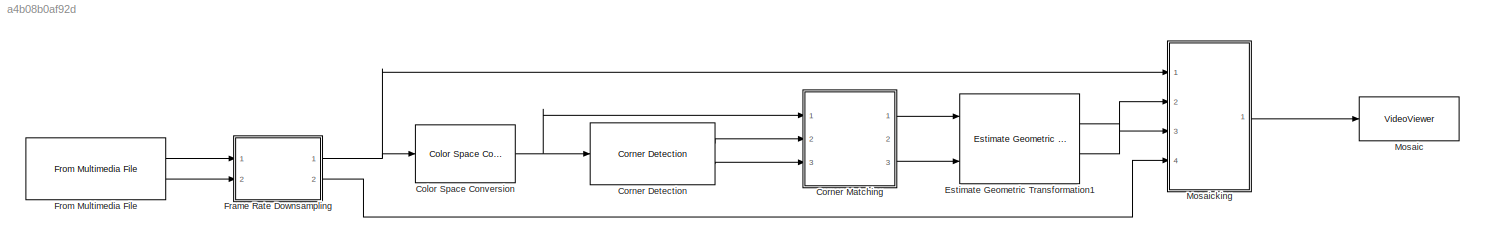
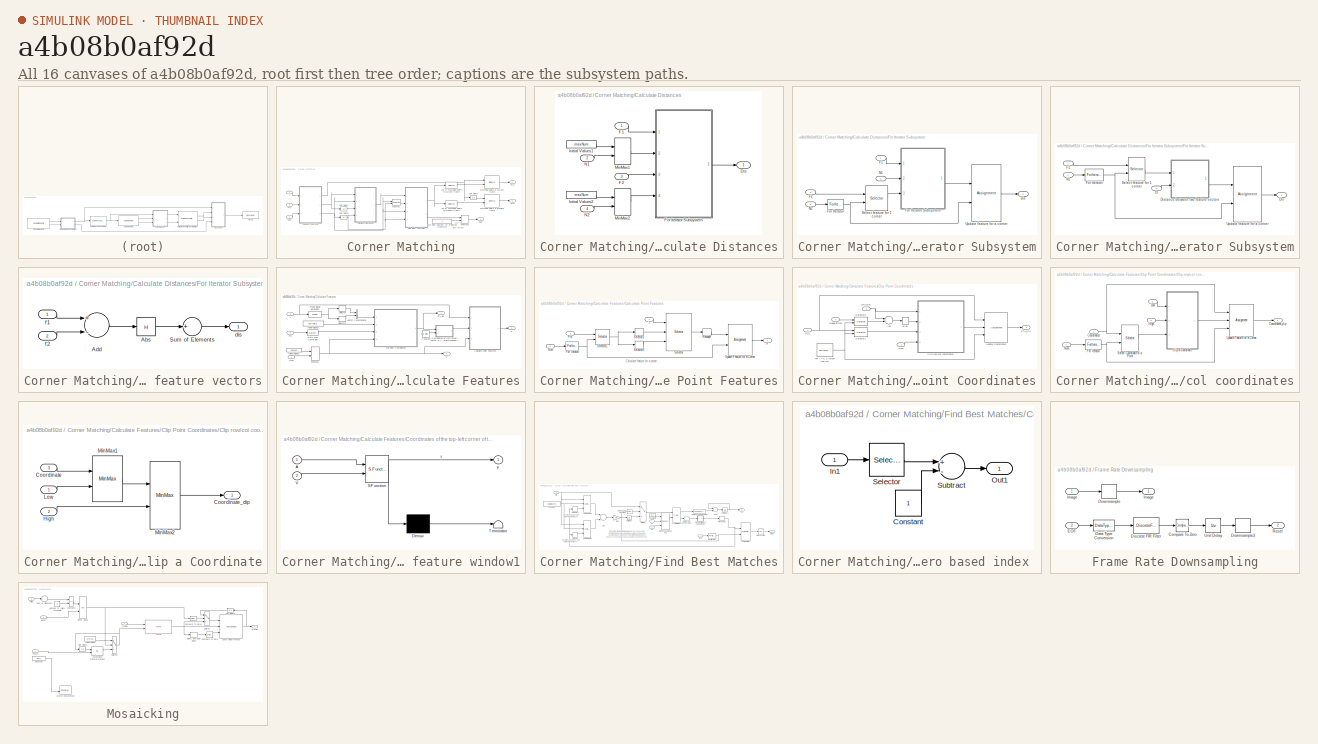
[diagram: thumbnail index - all 16 canvases of the model, root first then tree order]
MODEL slx_a4b08b0af92d
KIND model
CONFIG AbsTol = auto
CONFIG FixedStep = auto
CONFIG MaxStep = auto
CONFIG MinStep = auto
CONFIG RelTol = 1e-3
CONFIG SampleTimeConstraint = Unconstrained
CONFIG Solver = VariableStepAuto
CONFIG SolverMode = Auto
CONFIG SolverName = VariableStepAuto
CONFIG StartTime = 0.0
CONFIG StopTime = 10.0
BLOCK [Reference] Color Space Conversion  REF=visionconversions/Color Space
 Conversion
  Ports = [1, 1]
  SourceBlock = visionconversions/Color Space\n Conversion
  SourceType = Color Space Conversion
BLOCK [Reference] Corner Detection  REF=visionanalysis/Corner Detection
  Ports = [1, 2]
  SourceBlock = visionanalysis/Corner Detection
  SourceType = Corner Detection
BLOCK [SubSystem] Corner Matching
  Ports = [3, 3]
  RequestExecContextInheritance = off
  Variant = off
BLOCK [SubSystem] Corner Matching/Calculate Distances
  AttributesFormatString = between features.
  Ports = [4, 1]
  RequestExecContextInheritance = off
  TreatAsAtomicUnit = on
  Variant = off
BLOCK [Outport] Corner Matching/Calculate Distances/Dis
  IconDisplay = Port number
BLOCK [Inport] Corner Matching/Calculate Distances/F1
  IconDisplay = Port number
BLOCK [Inport] Corner Matching/Calculate Distances/F2
  IconDisplay = Port number
  Port = 3
BLOCK [SubSystem] Corner Matching/Calculate Distances/For Iterator Subsystem
  Ports = [4, 1]
  RequestExecContextInheritance = off
  TreatAsAtomicUnit = on
  Variant = off
BLOCK [Outport] Corner Matching/Calculate Distances/For Iterator Subsystem/Dis
  IconDisplay = Port number
BLOCK [Inport] Corner Matching/Calculate Distances/For Iterator Subsystem/F1
  IconDisplay = Port number
BLOCK [Inport] Corner Matching/Calculate Distances/For Iterator Subsystem/F2
  IconDisplay = Port number
  Port = 3
BLOCK [ForIterator] Corner Matching/Calculate Distances/For Iterator Subsystem/For Iterator
  IndexMode = Zero-based
  IterationSource = external
  Ports = [1, 1]
BLOCK [SubSystem] Corner Matching/Calculate Distances/For Iterator Subsystem/For Iterator Subsystem
  Ports = [3, 1]
  RequestExecContextInheritance = off
  TreatAsAtomicUnit = on
  Variant = off
BLOCK [Outport] Corner Matching/Calculate Distances/For Iterator Subsystem/For Iterator Subsystem/Dis
  IconDisplay = Port number
BLOCK [SubSystem] Corner Matching/Calculate Distances/For Iterator Subsystem/For Iterator Subsystem/Distance between two feature vectors
  Ports = [2, 1]
  RequestExecContextInheritance = off
  Variant = off
BLOCK [Abs] Corner Matching/Calculate Distances/For Iterator Subsystem/For Iterator Subsystem/Distance between two feature vectors/Abs
  SaturateOnIntegerOverflow = off
BLOCK [Sum] Corner Matching/Calculate Distances/For Iterator Subsystem/For Iterator Subsystem/Distance between two feature vectors/Add
  InputSameDT = off
  Inputs = +-
  OutDataTypeStr = Inherit: Inherit via internal rule
  Ports = [2, 1]
  SaturateOnIntegerOverflow = off
BLOCK [Sum] Corner Matching/Calculate Distances/For Iterator Subsystem/For Iterator Subsystem/Distance between two feature vectors/Sum of Elements
  InputSameDT = off
  Inputs = +
  OutDataTypeStr = Inherit: Inherit via internal rule
  Ports = [1, 1]
  SaturateOnIntegerOverflow = off
BLOCK [Outport] Corner Matching/Calculate Distances/For Iterator Subsystem/For Iterator Subsystem/Distance between two feature vectors/dis
  IconDisplay = Port number
BLOCK [Inport] Corner Matching/Calculate Distances/For Iterator Subsystem/For Iterator Subsystem/Distance between two feature vectors/f1
  IconDisplay = Port number
BLOCK [Inport] Corner Matching/Calculate Distances/For Iterator Subsystem/For Iterator Subsystem/Distance between two feature vectors/f2
  IconDisplay = Port number
  Port = 2
BLOCK [Inport] Corner Matching/Calculate Distances/For Iterator Subsystem/For Iterator Subsystem/F1
  IconDisplay = Port number
BLOCK [ForIterator] Corner Matching/Calculate Distances/For Iterator Subsystem/For Iterator Subsystem/For Iterator
  IndexMode = Zero-based
  IterationSource = external
  Ports = [1, 1]
BLOCK [Inport] Corner Matching/Calculate Distances/For Iterator Subsystem/For Iterator Subsystem/N1
  IconDisplay = Port number
  Port = 2
BLOCK [Selector] Corner Matching/Calculate Distances/For Iterator Subsystem/For Iterator Subsystem/Select feature for 1 corner
  IndexMode = Zero-based
  IndexOptions = Index vector (port),Select all
  Indices = 0,1
  InputPortWidth = 2
  NumberOfDimensions = 2
  OutputSizes = 1,1
  Ports = [2, 1]
BLOCK [Assignment] Corner Matching/Calculate Distances/For Iterator Subsystem/For Iterator Subsystem/Update feature for a corner
  IndexMode = Zero-based
  IndexOptions = Index vector (port),Assign all
  Indices = 1,1
  NumberOfDimensions = 2
  OutputInitialize = Specify size for each dimension in table
  OutputSizes = maxNum,1
  Ports = [2, 1]
BLOCK [Inport] Corner Matching/Calculate Distances/For Iterator Subsystem/For Iterator Subsystem/f2
  IconDisplay = Port number
  Port = 3
BLOCK [Inport] Corner Matching/Calculate Distances/For Iterator Subsystem/N1
  IconDisplay = Port number
  Port = 2
BLOCK [Inport] Corner Matching/Calculate Distances/For Iterator Subsystem/N2
  IconDisplay = Port number
  Port = 4
BLOCK [Selector] Corner Matching/Calculate Distances/For Iterator Subsystem/Select feature for 1 corner
  IndexMode = Zero-based
  IndexOptions = Index vector (port),Select all
  Indices = 0,1
  InputPortWidth = 2
  NumberOfDimensions = 2
  OutputSizes = 1,1
  Ports = [2, 1]
BLOCK [Assignment] Corner Matching/Calculate Distances/For Iterator Subsystem/Update feature for a corner
  IndexMode = Zero-based
  IndexOptions = Assign all,Index vector (port)
  Indices = 1,1
  NumberOfDimensions = 2
  OutputInitialize = Specify size for each dimension in table
  OutputSizes = maxNum,maxNum
  Ports = [2, 1]
BLOCK [Constant] Corner Matching/Calculate Distances/Initial Values1
  OutDataTypeStr = Inherit: Inherit via back propagation
  SampleTime = -1
  Value = maxNum
BLOCK [Constant] Corner Matching/Calculate Distances/Initial Values2
  OutDataTypeStr = Inherit: Inherit via back propagation
  SampleTime = -1
  Value = maxNum
BLOCK [MinMax] Corner Matching/Calculate Distances/MinMax1
  InputSameDT = off
  Inputs = 2
  Ports = [2, 1]
  SaturateOnIntegerOverflow = off
BLOCK [MinMax] Corner Matching/Calculate Distances/MinMax2
  InputSameDT = off
  Inputs = 2
  Ports = [2, 1]
  SaturateOnIntegerOverflow = off
BLOCK [Inport] Corner Matching/Calculate Distances/N1
  IconDisplay = Port number
  Port = 2
BLOCK [Inport] Corner Matching/Calculate Distances/N2
  IconDisplay = Port number
  Port = 4
BLOCK [SubSystem] Corner Matching/Calculate Features
  Ports = [3, 3]
  RequestExecContextInheritance = off
  TreatAsAtomicUnit = on
  Variant = off
BLOCK [SubSystem] Corner Matching/Calculate Features/Calculate Point Features
  Ports = [3, 1]
  RequestExecContextInheritance = off
  Variant = off
BLOCK [Outport] Corner Matching/Calculate Features/Calculate Point Features/F
  IconDisplay = Port number
BLOCK [ForIterator] Corner Matching/Calculate Features/Calculate Point Features/For Iterator
  IndexMode = Zero-based
  IterationSource = external
  Ports = [1, 1]
BLOCK [Inport] Corner Matching/Calculate Features/Calculate Point Features/I
  IconDisplay = Port number
BLOCK [Inport] Corner Matching/Calculate Features/Calculate Point Features/Num
  IconDisplay = Port number
  Port = 3
BLOCK [Inport] Corner Matching/Calculate Features/Calculate Point Features/Pts
  IconDisplay = Port number
  Port = 2
BLOCK [Reshape] Corner Matching/Calculate Features/Calculate Point Features/Reshape
  OutputDimensionality = Row vector (2-D)
  Ports = [1, 1]
BLOCK [Selector] Corner Matching/Calculate Features/Calculate Point Features/Selector
  IndexMode = Zero-based
  IndexOptions = Starting index (port),Starting index (port)
  Indices = [1 3],1
  InputPortWidth = 3
  NumberOfDimensions = 2
  OutputSizes = winLen,winLen
  Ports = [3, 1]
BLOCK [Selector] Corner Matching/Calculate Features/Calculate Point Features/Selector1
  IndexMode = Zero-based
  IndexOptions = Index vector (port),Select all
  Indices = [1 3],1
  InputPortWidth = 3
  NumberOfDimensions = 2
  OutputSizes = 9,9
  Ports = [2, 1]
BLOCK [Selector] Corner Matching/Calculate Features/Calculate Point Features/Selector2
  IndexMode = Zero-based
  IndexOptions = Index vector (dialog)
  Indices = 1
  InputPortWidth = 2
  OutputSizes = 9
  Ports = [1, 1]
BLOCK [Selector] Corner Matching/Calculate Features/Calculate Point Features/Selector3
  IndexMode = Zero-based
  IndexOptions = Index vector (dialog)
  Indices = 0
  InputPortWidth = 2
  OutputSizes = 9
  Ports = [1, 1]
BLOCK [Assignment] Corner Matching/Calculate Features/Calculate Point Features/Update Feature for a Corner
  IndexMode = Zero-based
  IndexOptions = Index vector (port),Assign all
  Indices = 1,1
  NumberOfDimensions = 2
  OutputInitialize = Specify size for each dimension in table
  OutputSizes = maxNum,winLen^2
  Ports = [2, 1]
BLOCK [SubSystem] Corner Matching/Calculate Features/Clip Point Coordinates
  Ports = [4, 1]
  RequestExecContextInheritance = off
  Variant = off
BLOCK [Sum] Corner Matching/Calculate Features/Clip Point Coordinates/Add
  InputSameDT = off
  Inputs = -+
  OutDataTypeStr = Inherit: Inherit via internal rule
  Ports = [2, 1]
  SaturateOnIntegerOverflow = off
BLOCK [Bias] Corner Matching/Calculate Features/Clip Point Coordinates/Bias
  Bias = -1
  SaturateOnIntegerOverflow = off
BLOCK [SubSystem] Corner Matching/Calculate Features/Clip Point Coordinates/Clip row//col coordinates
  Ports = [4, 1]
  RequestExecContextInheritance = off
  Variant = off
BLOCK [SubSystem] Corner Matching/Calculate Features/Clip Point Coordinates/Clip row//col coordinates/Clip a Coordinate
  Ports = [3, 1]
  RequestExecContextInheritance = off
  Variant = off
BLOCK [Inport] Corner Matching/Calculate Features/Clip Point Coordinates/Clip row//col coordinates/Clip a Coordinate/Coordinate
  IconDisplay = Port number
  Port = 3
BLOCK [Outport] Corner Matching/Calculate Features/Clip Point Coordinates/Clip row//col coordinates/Clip a Coordinate/Coordinate_clip
  IconDisplay = Port number
BLOCK [Inport] Corner Matching/Calculate Features/Clip Point Coordinates/Clip row//col coordinates/Clip a Coordinate/High
  IconDisplay = Port number
  Port = 2
BLOCK [Inport] Corner Matching/Calculate Features/Clip Point Coordinates/Clip row//col coordinates/Clip a Coordinate/Low
  IconDisplay = Port number
BLOCK [MinMax] Corner Matching/Calculate Features/Clip Point Coordinates/Clip row//col coordinates/Clip a Coordinate/MinMax1
  Function = max
  InputSameDT = off
  Inputs = 2
  Ports = [2, 1]
  SaturateOnIntegerOverflow = off
BLOCK [MinMax] Corner Matching/Calculate Features/Clip Point Coordinates/Clip row//col coordinates/Clip a Coordinate/MinMax2
  InputSameDT = off
  Inputs = 2
  Ports = [2, 1]
  SaturateOnIntegerOverflow = off
BLOCK [Inport] Corner Matching/Calculate Features/Clip Point Coordinates/Clip row//col coordinates/Coordinates
  IconDisplay = Port number
  Port = 3
BLOCK [Outport] Corner Matching/Calculate Features/Clip Point Coordinates/Clip row//col coordinates/Coordinates_clip
  IconDisplay = Port number
BLOCK [ForIterator] Corner Matching/Calculate Features/Clip Point Coordinates/Clip row//col coordinates/For Iterator
  IndexMode = Zero-based
  IterationLimit = 2
  IterationSource = external
  Ports = [1, 1]
BLOCK [Inport] Corner Matching/Calculate Features/Clip Point Coordinates/Clip row//col coordinates/High
  IconDisplay = Port number
  Port = 2
BLOCK [Inport] Corner Matching/Calculate Features/Clip Point Coordinates/Clip row//col coordinates/Low
  IconDisplay = Port number
BLOCK [Inport] Corner Matching/Calculate Features/Clip Point Coordinates/Clip row//col coordinates/Num
  IconDisplay = Port number
  Port = 4
BLOCK [Selector] Corner Matching/Calculate Features/Clip Point Coordinates/Clip row//col coordinates/Select Coordinate of a Point
  IndexMode = Zero-based
  IndexOptions = Index vector (port),Select all
  Indices = [1 3],1
  InputPortWidth = 3
  NumberOfDimensions = 2
  OutputSizes = 9,1
  Ports = [2, 1]
BLOCK [Assignment] Corner Matching/Calculate Features/Clip Point Coordinates/Clip row//col coordinates/Update Feature for a Corner
  IndexMode = Zero-based
  IndexOptions = Index vector (port),Assign all
  Indices = 1,1
  NumberOfDimensions = 2
  OutputSizes = 81,50
  Ports = [3, 1]
BLOCK [ForIterator] Corner Matching/Calculate Features/Clip Point Coordinates/For i = 0: 1 (select row//col)
  IndexMode = Zero-based
  IterationLimit = 2
  Ports = [0, 1]
BLOCK [Inport] Corner Matching/Calculate Features/Clip Point Coordinates/Image_dimen
  IconDisplay = Port number
BLOCK [Inport] Corner Matching/Calculate Features/Clip Point Coordinates/Num
  IconDisplay = Port number
  Port = 4
BLOCK [Inport] Corner Matching/Calculate Features/Clip Point Coordinates/Pts
  IconDisplay = Port number
  Port = 3
BLOCK [Outport] Corner Matching/Calculate Features/Clip Point Coordinates/Pts_clip
  IconDisplay = Port number
BLOCK [Selector] Corner Matching/Calculate Features/Clip Point Coordinates/Selector1
  IndexMode = Zero-based
  IndexOptions = Select all,Index vector (port)
  Indices = [1 3],1
  InputPortWidth = 3
  NumberOfDimensions = 2
  OutputSizes = 9,9
  Ports = [2, 1]
BLOCK [Selector] Corner Matching/Calculate Features/Clip Point Coordinates/Selector2
  IndexMode = Zero-based
  IndexOptions = Index vector (port)
  Indices = [1 3]
  InputPortWidth = 2
  OutputSizes = 9
  Ports = [2, 1]
BLOCK [Assignment] Corner Matching/Calculate Features/Clip Point Coordinates/Update Coordinates
  IndexMode = Zero-based
  IndexOptions = Assign all,Index vector (port)
  Indices = 1,1
  NumberOfDimensions = 2
  OutputSizes = 81,50
  Ports = [3, 1]
BLOCK [Inport] Corner Matching/Calculate Features/Clip Point Coordinates/Win_size
  IconDisplay = Port number
  Port = 2
BLOCK [Constant] Corner Matching/Calculate Features/Constant
  OutDataTypeStr = int32
  Value = floor([winLen; winLen] / 2)
BLOCK [SubSystem] Corner Matching/Calculate Features/Coordinates of the top-left corner of the feature window1
  ErrorFcn = Stateflow.Translate.translate
  PermitHierarchicalResolution = ExplicitOnly
  Ports = [2, 1]
  RequestExecContextInheritance = off
  SFBlockType = MATLAB Function
  TreatAsAtomicUnit = on
  Variant = off
BLOCK [Demux] Corner Matching/Calculate Features/Coordinates of the top-left corner of the feature window1/ Demux 
  Outputs = 1
  Ports = [1, 1]
BLOCK [S-Function] Corner Matching/Calculate Features/Coordinates of the top-left corner of the feature window1/ SFunction 
  EnableBusSupport = on
  FunctionName = sf_sfun
  PortCounts = [2 2]
  Ports = [2, 2]
  SFunctionDeploymentMode = off
  Tag = Stateflow S-Function temp 2
BLOCK [Terminator] Corner Matching/Calculate Features/Coordinates of the top-left corner of the feature window1/ Terminator 
BLOCK [Inport] Corner Matching/Calculate Features/Coordinates of the top-left corner of the feature window1/A
  IconDisplay = Port number
BLOCK [Inport] Corner Matching/Calculate Features/Coordinates of the top-left corner of the feature window1/V
  IconDisplay = Port number
  Port = 2
BLOCK [Outport] Corner Matching/Calculate Features/Coordinates of the top-left corner of the feature window1/y
  IconDisplay = Port number
BLOCK [DataTypeConversion] Corner Matching/Calculate Features/Data Type Conversion
  OutDataTypeStr = int32
  RndMeth = Floor
  SaturateOnIntegerOverflow = off
BLOCK [Outport] Corner Matching/Calculate Features/F
  IconDisplay = Port number
  Port = 2
BLOCK [Inport] Corner Matching/Calculate Features/I
  IconDisplay = Port number
BLOCK [Constant] Corner Matching/Calculate Features/Initial Values1
  OutDataTypeStr = Inherit: Inherit via back propagation
  SampleTime = -1
  Value = maxNum
BLOCK [Constant] Corner Matching/Calculate Features/Initial Values2
  OutDataTypeStr = Inherit: Inherit via back propagation
  SampleTime = -1
  Value = floor(winLen/2)
BLOCK [MinMax] Corner Matching/Calculate Features/MinMax1
  InputSameDT = off
  Inputs = 2
  Ports = [2, 1]
  SaturateOnIntegerOverflow = off
BLOCK [Outport] Corner Matching/Calculate Features/N
  IconDisplay = Port number
  Port = 3
BLOCK [Inport] Corner Matching/Calculate Features/Num
  IconDisplay = Port number
  Port = 3
BLOCK [Probe] Corner Matching/Calculate Features/Probe signal dimension
  Ports = [1, 1]
  ProbeComplexSignal = off
  ProbeDimensionsDataType = int32
  ProbeSampleTime = off
  ProbeSignalDimensions = on
  ProbeWidth = off
BLOCK [Inport] Corner Matching/Calculate Features/Pts
  IconDisplay = Port number
  Port = 2
BLOCK [Outport] Corner Matching/Calculate Features/Pts_clip
  IconDisplay = Port number
BLOCK [Selector] Corner Matching/Calculate Features/Selector
  IndexOptions = Index vector (dialog)
  Indices = 2
  InputPortWidth = 2
  OutputSizes = 1
  Ports = [1, 1]
BLOCK [Selector] Corner Matching/Calculate Features/Selector1
  IndexOptions = Index vector (dialog)
  Indices = 1
  InputPortWidth = 2
  OutputSizes = 1
  Ports = [1, 1]
BLOCK [Concatenate] Corner Matching/Calculate Features/Vector Concatenate
  Ports = [2, 1]
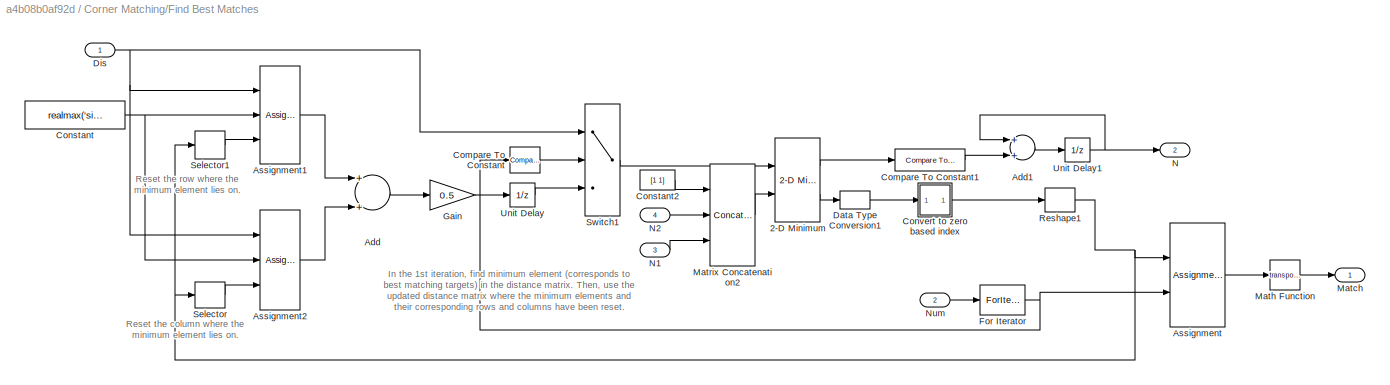
BLOCK [SubSystem] Corner Matching/Find Best Matches
  AttributesFormatString = between the features\nin the current and previous frames
  Ports = [4, 2]
  RequestExecContextInheritance = off
  TreatAsAtomicUnit = on
  Variant = off
BLOCK [Reference] Corner Matching/Find Best Matches/2-D Minimum  REF=visionstatistics/2-D Minimum
  Ports = [2, 2]
  SourceBlock = visionstatistics/2-D Minimum
  SourceType = 2-D Minimum
  UserDataPersistent = on
BLOCK [Sum] Corner Matching/Find Best Matches/Add
  InputSameDT = off
  OutDataTypeStr = Inherit: Inherit via internal rule
  Ports = [2, 1]
  SaturateOnIntegerOverflow = off
BLOCK [Sum] Corner Matching/Find Best Matches/Add1
  InputSameDT = off
  OutDataTypeStr = int32
  Ports = [2, 1]
  SaturateOnIntegerOverflow = off
BLOCK [Assignment] Corner Matching/Find Best Matches/Assignment
  IndexMode = Zero-based
  IndexOptions = Assign all,Index vector (port)
  Indices = -1,-1
  NumberOfDimensions = 2
  OutputInitialize = Specify size for each dimension in table
  OutputSizes = 2,maxNum
  Ports = [2, 1]
BLOCK [Assignment] Corner Matching/Find Best Matches/Assignment1
  IndexMode = Zero-based
  IndexOptions = Index vector (port),Assign all
  Indices = 1,-1
  NumberOfDimensions = 2
  OutputSizes = 1,1
  Ports = [3, 1]
BLOCK [Assignment] Corner Matching/Find Best Matches/Assignment2
  IndexMode = Zero-based
  IndexOptions = Assign all,Index vector (port)
  Indices = -1,-1
  NumberOfDimensions = 2
  OutputSizes = 1,1
  Ports = [3, 1]
BLOCK [Reference] Corner Matching/Find Best Matches/Compare To Constant  REF=simulink/Logic and Bit
Operations/Compare
To Constant
  Ports = [1, 1]
  SourceBlock = simulink/Logic and Bit\nOperations/Compare\nTo Constant
  SourceType = Compare To Constant
BLOCK [Reference] Corner Matching/Find Best Matches/Compare To Constant1  REF=simulink/Logic and Bit
Operations/Compare
To Constant
  Ports = [1, 1]
  SourceBlock = simulink/Logic and Bit\nOperations/Compare\nTo Constant
  SourceType = Compare To Constant
BLOCK [Constant] Corner Matching/Find Best Matches/Constant
  OutDataTypeStr = Inherit: Inherit via back propagation
  Value = realmax('single')
  VectorParams1D = off
BLOCK [Constant] Corner Matching/Find Best Matches/Constant2
  OutDataTypeStr = Inherit: Inherit via back propagation
  Value = [1 1]
  VectorParams1D = off
BLOCK [SubSystem] Corner Matching/Find Best Matches/Convert to zero based index 
  Ports = [1, 1]
  RequestExecContextInheritance = off
  Variant = off
BLOCK [Constant] Corner Matching/Find Best Matches/Convert to zero based index /Constant
BLOCK [Inport] Corner Matching/Find Best Matches/Convert to zero based index /In1
  IconDisplay = Port number
BLOCK [Outport] Corner Matching/Find Best Matches/Convert to zero based index /Out1
  IconDisplay = Port number
BLOCK [Selector] Corner Matching/Find Best Matches/Convert to zero based index /Selector
  IndexOptions = Select all,Index vector (dialog)
  Indices = [1 3],[2 1]
  InputPortWidth = 3
  NumberOfDimensions = 2
  OutputSizes = 1,1
  Ports = [1, 1]
BLOCK [Sum] Corner Matching/Find Best Matches/Convert to zero based index /Subtract
  InputSameDT = off
  Inputs = +-
  OutDataTypeStr = Inherit: Inherit via internal rule
  Ports = [2, 1]
  SaturateOnIntegerOverflow = off
BLOCK [DataTypeConversion] Corner Matching/Find Best Matches/Data Type Conversion1
  OutDataTypeStr = int32
BLOCK [Inport] Corner Matching/Find Best Matches/Dis
  IconDisplay = Port number
BLOCK [ForIterator] Corner Matching/Find Best Matches/For Iterator
  IndexMode = Zero-based
  IterationLimit = expLaneNum
  IterationSource = external
  Ports = [1, 1]
  ResetStates = reset
BLOCK [Gain] Corner Matching/Find Best Matches/Gain
  Gain = 0.5
  OutDataTypeStr = Inherit: Inherit via internal rule
  ParamDataTypeStr = Inherit: Inherit via internal rule
  SaturateOnIntegerOverflow = off
BLOCK [Outport] Corner Matching/Find Best Matches/Match
  IconDisplay = Port number
BLOCK [Math] Corner Matching/Find Best Matches/Math Function
  Operator = transpose
  Ports = [1, 1]
BLOCK [Concatenate] Corner Matching/Find Best Matches/Matrix Concatenation2
  ConcatenateDimension = 2
  Mode = Multidimensional array
  NumInputs = 3
  Ports = [3, 1]
BLOCK [Outport] Corner Matching/Find Best Matches/N
  IconDisplay = Port number
  Port = 2
BLOCK [Inport] Corner Matching/Find Best Matches/N1
  IconDisplay = Port number
  Port = 3
BLOCK [Inport] Corner Matching/Find Best Matches/N2
  IconDisplay = Port number
  Port = 4
BLOCK [Inport] Corner Matching/Find Best Matches/Num
  IconDisplay = Port number
  Port = 2
BLOCK [Reshape] Corner Matching/Find Best Matches/Reshape1
  OutputDimensionality = Column vector (2-D)
  Ports = [1, 1]
BLOCK [Selector] Corner Matching/Find Best Matches/Selector
  IndexMode = Zero-based
  IndexOptions = Index vector (dialog)
  Indices = 1
  InputPortWidth = 2
  OutputSizes = 1
  Ports = [1, 1]
BLOCK [Selector] Corner Matching/Find Best Matches/Selector1
  IndexMode = Zero-based
  IndexOptions = Index vector (dialog)
  Indices = 0
  InputPortWidth = 2
  OutputSizes = 1
  Ports = [1, 1]
BLOCK [Switch] Corner Matching/Find Best Matches/Switch1
  Criteria = u2 ~= 0
  InputSameDT = off
  SaturateOnIntegerOverflow = off
BLOCK [UnitDelay] Corner Matching/Find Best Matches/Unit Delay
  InputProcessing = Elements as channels (sample based)
  SampleTime = -1
BLOCK [UnitDelay] Corner Matching/Find Best Matches/Unit Delay1
  InputProcessing = Elements as channels (sample based)
  SampleTime = -1
BLOCK [Inport] Corner Matching/I
  IconDisplay = Port number
BLOCK [Selector] Corner Matching/Idx of matching points in current frame
  IndexMode = Zero-based
  IndexOptions = Select all,Index vector (dialog)
  Indices = 0,0
  InputPortWidth = 2
  NumberOfDimensions = 2
  OutputSizes = 1,1
  Ports = [1, 1]
BLOCK [Selector] Corner Matching/Idx of matching points in previous frame
  IndexMode = Zero-based
  IndexOptions = Select all,Index vector (dialog)
  Indices = 1,1
  InputPortWidth = 2
  NumberOfDimensions = 2
  OutputSizes = 1,1
  Ports = [1, 1]
BLOCK [Selector] Corner Matching/Matching points in current frame
  IndexMode = Zero-based
  IndexOptions = Index vector (port),Select all
  Indices = 0,1
  InputPortWidth = 2
  NumberOfDimensions = 2
  OutputSizes = 1,1
  Ports = [2, 1]
BLOCK [Selector] Corner Matching/Matching points in previous frame
  IndexMode = Zero-based
  IndexOptions = Index vector (port),Select all
  Indices = 0,1
  InputPortWidth = 2
  NumberOfDimensions = 2
  OutputSizes = 1,1
  Ports = [2, 1]
BLOCK [Constant] Corner Matching/Min Point Number for Projective Transform
  OutDataTypeStr = Inherit: Inherit via back propagation
  Value = 4
BLOCK [MinMax] Corner Matching/MinMax1
  InputSameDT = off
  Inputs = 2
  Ports = [2, 1]
  SaturateOnIntegerOverflow = off
BLOCK [MinMax] Corner Matching/MinMax2
  Function = max
  InputSameDT = off
  Inputs = 2
  OutDataTypeStr = Inherit: Inherit via back propagation
  Ports = [2, 1]
  SaturateOnIntegerOverflow = off
BLOCK [Inport] Corner Matching/Num
  IconDisplay = Port number
  Port = 3
BLOCK [Outport] Corner Matching/Num 
  IconDisplay = Port number
  Port = 3
BLOCK [Inport] Corner Matching/Pts
  IconDisplay = Port number
  Port = 2
BLOCK [Outport] Corner Matching/Pts1
  IconDisplay = Port number
BLOCK [Outport] Corner Matching/Pts2
  IconDisplay = Port number
  Port = 2
BLOCK [UnitDelay] Corner Matching/Unit Delay4
  SampleTime = -1
BLOCK [UnitDelay] Corner Matching/Unit Delay6
  SampleTime = -1
BLOCK [UnitDelay] Corner Matching/Unit Delay7
  SampleTime = -1
BLOCK [Reference] Estimate Geometric Transformation1  REF=visiongeotforms/Estimate Geometric
Transformation
  Ports = [3, 2]
  SourceBlock = visiongeotforms/Estimate Geometric\nTransformation
  SourceType = Estimate Geometric Transformation
BLOCK [SubSystem] Frame Rate Downsampling
  Ports = [2, 2]
  RequestExecContextInheritance = off
  Variant = off
BLOCK [Reference] Frame Rate Downsampling/Compare To Zero  REF=simulink/Logic and Bit
Operations/Compare
To Zero
  Ports = [1, 1]
  SourceBlock = simulink/Logic and Bit\nOperations/Compare\nTo Zero
  SourceType = Compare To Zero
BLOCK [DataTypeConversion] Frame Rate Downsampling/Data Type Conversion
  OutDataTypeStr = single
  RndMeth = Floor
  SaturateOnIntegerOverflow = off
BLOCK [DiscreteFir] Frame Rate Downsampling/Discrete FIR Filter
  Coefficients = ones(1, frameRate)
  InputPortMap = u0
  OutputPortMap = o0
  Ports = [1, 1]
BLOCK [DownSample] Frame Rate Downsampling/Downsample
  InputProcessing = Elements as channels (sample based)
  N = frameRate
  RateOptions = Allow multirate processing
  UserDataPersistent = on
BLOCK [DownSample] Frame Rate Downsampling/Downsample3
  InputProcessing = Elements as channels (sample based)
  N = frameRate
  RateOptions = Allow multirate processing
  UserDataPersistent = on
BLOCK [Inport] Frame Rate Downsampling/EOF
  IconDisplay = Port number
  Port = 2
BLOCK [Inport] Frame Rate Downsampling/Image
  IconDisplay = Port number
BLOCK [Outport] Frame Rate Downsampling/Image 
  IconDisplay = Port number
BLOCK [Outport] Frame Rate Downsampling/Reset
  IconDisplay = Port number
  Port = 2
BLOCK [UnitDelay] Frame Rate Downsampling/Unit Delay
  InitialCondition = 1
  SampleTime = -1
BLOCK [Reference] From Multimedia File  REF=dspvision/From Multimedia File
  Ports = [0, 2]
  SourceBlock = dspvision/From Multimedia File
  SourceType = From Multimedia File
BLOCK [VideoViewer] Mosaic 
  FigPos = [1 1038 1920 938]
  Ports = [1]
  ScopeSpecificationString = vipscopes.VideoViewerScopeCfg('CurrentConfiguration', extmgr.ConfigurationSet(extmgr.Configuration('Core','General UI',true,'FigureProperties',[],'FigureColor',[0.701960784313725 0.701960784313725 0.701960784313725]),extmgr.Configuration('Core','Source UI',true),extmgr.Configuration('Sources','WiredSimulink',true),extmgr.Configuration('Sources','Simulink',false),extmgr.Configuration('Sources','Wor...<+1047ch>
  colormapValue = gray(256)
  trueSizedOnce = on
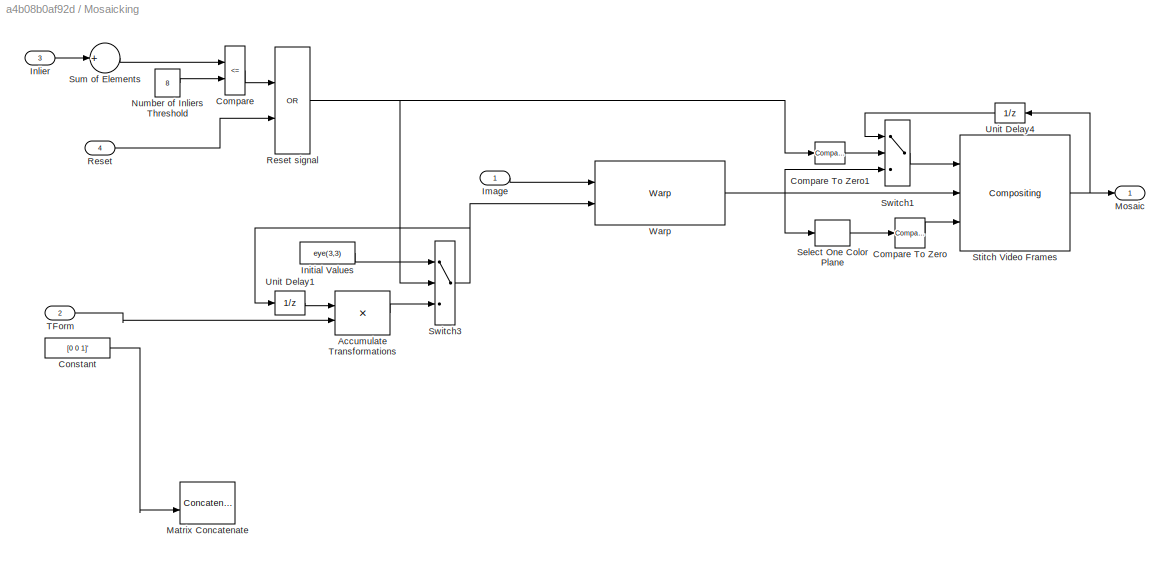
BLOCK [SubSystem] Mosaicking
  Ports = [4, 1]
  RequestExecContextInheritance = off
  Variant = off
BLOCK [Product] Mosaicking/Accumulate Transformations
  InputSameDT = off
  Multiplication = Matrix(*)
  OutDataTypeStr = Inherit: Inherit via internal rule
  Ports = [2, 1]
  SaturateOnIntegerOverflow = off
BLOCK [RelationalOperator] Mosaicking/Compare
  Operator = <=
  OutDataTypeStr = boolean
  Ports = [2, 1]
  ZeroCross = off
BLOCK [Reference] Mosaicking/Compare To Zero  REF=simulink/Logic and Bit
Operations/Compare
To Zero
  Ports = [1, 1]
  SourceBlock = simulink/Logic and Bit\nOperations/Compare\nTo Zero
  SourceType = Compare To Zero
BLOCK [Reference] Mosaicking/Compare To Zero1  REF=simulink/Logic and Bit
Operations/Compare
To Zero
  Ports = [1, 1]
  SourceBlock = simulink/Logic and Bit\nOperations/Compare\nTo Zero
  SourceType = Compare To Zero
BLOCK [Constant] Mosaicking/Constant
  OutDataTypeStr = Inherit: Inherit via back propagation
  Value = [0 0 1]'
  VectorParams1D = off
BLOCK [Inport] Mosaicking/Image
  IconDisplay = Port number
BLOCK [Constant] Mosaicking/Initial Values
  OutDataTypeStr = Inherit: Inherit via back propagation
  SampleTime = -1
  Value = eye(3,3)
BLOCK [Inport] Mosaicking/Inlier
  IconDisplay = Port number
  Port = 3
BLOCK [Concatenate] Mosaicking/Matrix Concatenate
  ConcatenateDimension = 2
  Mode = Multidimensional array
  Ports = [2, 1]
BLOCK [Outport] Mosaicking/Mosaic
  IconDisplay = Port number
BLOCK [Constant] Mosaicking/Number of Inliers Threshold
  OutDataTypeStr = Inherit: Inherit via back propagation
  SampleTime = -1
  Value = 8
BLOCK [Inport] Mosaicking/Reset
  IconDisplay = Port number
  Port = 4
BLOCK [Logic] Mosaicking/Reset signal
  AllPortsSameDT = off
  AttributesFormatString = Restart mosaicking when the video started\nor when no enough inliers were found.
  Operator = OR
  OutDataTypeStr = boolean
  Ports = [2, 1]
BLOCK [Selector] Mosaicking/Select One Color Plane
  IndexOptions = Select all,Select all,Index vector (dialog)
  Indices = 40,10,1
  InputPortWidth = 3
  NumberOfDimensions = 3
  OutputSizes = 240,320,1
  Ports = [1, 1]
BLOCK [Reference] Mosaicking/Stitch Video Frames  REF=visiontextngfix/Compositing
  Ports = [3, 1]
  SourceBlock = visiontextngfix/Compositing
  SourceType = Compositing
BLOCK [Sum] Mosaicking/Sum of Elements
  InputSameDT = off
  Inputs = +
  OutDataTypeStr = Inherit: Inherit via internal rule
  Ports = [1, 1]
  SaturateOnIntegerOverflow = off
BLOCK [Switch] Mosaicking/Switch1
  Criteria = u2 ~= 0
  SaturateOnIntegerOverflow = off
  ZeroCross = off
BLOCK [Switch] Mosaicking/Switch3
  Criteria = u2 ~= 0
  SaturateOnIntegerOverflow = off
  ZeroCross = off
BLOCK [Inport] Mosaicking/TForm
  IconDisplay = Port number
  Port = 2
BLOCK [UnitDelay] Mosaicking/Unit Delay1
  SampleTime = -1
BLOCK [UnitDelay] Mosaicking/Unit Delay4
  SampleTime = -1
BLOCK [Reference] Mosaicking/Warp  REF=visiongeotforms/Warp
  Ports = [2, 1]
  SourceBlock = visiongeotforms/Warp
  SourceType = vision.internal.blocks.Warp
ANNOTATION Corner Matching: Just to silent warning
ANNOTATION Corner Matching/Calculate Features/Calculate Point Features: Calculate feature for a corner.
ANNOTATION Corner Matching/Find Best Matches: In the 1st iteration, find minimum element (corresponds to best matching targets) in the distance matrix. Then, use the updated distance matrix where the minimum elements and their corresponding rows and columns have been reset.
ANNOTATION Corner Matching/Find Best Matches: Reset the column where the minimum element lies on.
ANNOTATION Corner Matching/Find Best Matches: Reset the row where the minimum element lies on.
NET Color Space Conversion:1 -> Corner Detection:1, Corner Matching:1
LINE Corner Detection:1 -> Corner Matching:2
LINE Corner Detection:2 -> Corner Matching:3
LINE Corner Matching/Calculate Distances/F1:1 -> Corner Matching/Calculate Distances/For Iterator Subsystem:1
LINE Corner Matching/Calculate Distances/F2:1 -> Corner Matching/Calculate Distances/For Iterator Subsystem:3
LINE Corner Matching/Calculate Distances/For Iterator Subsystem/F1:1 -> Corner Matching/Calculate Distances/For Iterator Subsystem/For Iterator Subsystem:1
LINE Corner Matching/Calculate Distances/For Iterator Subsystem/F2:1 -> Corner Matching/Calculate Distances/For Iterator Subsystem/Select feature for 1 corner:1
LINE Corner Matching/Calculate Distances/For Iterator Subsystem/For Iterator Subsystem/Distance between two feature vectors/Abs:1 -> Corner Matching/Calculate Distances/For Iterator Subsystem/For Iterator Subsystem/Distance between two feature vectors/Sum of Elements:1
LINE Corner Matching/Calculate Distances/For Iterator Subsystem/For Iterator Subsystem/Distance between two feature vectors/Add:1 -> Corner Matching/Calculate Distances/For Iterator Subsystem/For Iterator Subsystem/Distance between two feature vectors/Abs:1
LINE Corner Matching/Calculate Distances/For Iterator Subsystem/For Iterator Subsystem/Distance between two feature vectors/Sum of Elements:1 -> Corner Matching/Calculate Distances/For Iterator Subsystem/For Iterator Subsystem/Distance between two feature vectors/dis:1
LINE Corner Matching/Calculate Distances/For Iterator Subsystem/For Iterator Subsystem/Distance between two feature vectors/f1:1 -> Corner Matching/Calculate Distances/For Iterator Subsystem/For Iterator Subsystem/Distance between two feature vectors/Add:1
LINE Corner Matching/Calculate Distances/For Iterator Subsystem/For Iterator Subsystem/Distance between two feature vectors/f2:1 -> Corner Matching/Calculate Distances/For Iterator Subsystem/For Iterator Subsystem/Distance between two feature vectors/Add:2
LINE Corner Matching/Calculate Distances/For Iterator Subsystem/For Iterator Subsystem/Distance between two feature vectors:1 -> Corner Matching/Calculate Distances/For Iterator Subsystem/For Iterator Subsystem/Update feature for a corner:1
LINE Corner Matching/Calculate Distances/For Iterator Subsystem/For Iterator Subsystem/F1:1 -> Corner Matching/Calculate Distances/For Iterator Subsystem/For Iterator Subsystem/Select feature for 1 corner:1
NET Corner Matching/Calculate Distances/For Iterator Subsystem/For Iterator Subsystem/For Iterator:1 -> Corner Matching/Calculate Distances/For Iterator Subsystem/For Iterator Subsystem/Select feature for 1 corner:2, Corner Matching/Calculate Distances/For Iterator Subsystem/For Iterator Subsystem/Update feature for a corner:2
LINE Corner Matching/Calculate Distances/For Iterator Subsystem/For Iterator Subsystem/N1:1 -> Corner Matching/Calculate Distances/For Iterator Subsystem/For Iterator Subsystem/For Iterator:1
LINE Corner Matching/Calculate Distances/For Iterator Subsystem/For Iterator Subsystem/Select feature for 1 corner:1 -> Corner Matching/Calculate Distances/For Iterator Subsystem/For Iterator Subsystem/Distance between two feature vectors:1
LINE Corner Matching/Calculate Distances/For Iterator Subsystem/For Iterator Subsystem/Update feature for a corner:1 -> Corner Matching/Calculate Distances/For Iterator Subsystem/For Iterator Subsystem/Dis:1
LINE Corner Matching/Calculate Distances/For Iterator Subsystem/For Iterator Subsystem/f2:1 -> Corner Matching/Calculate Distances/For Iterator Subsystem/For Iterator Subsystem/Distance between two feature vectors:2
LINE Corner Matching/Calculate Distances/For Iterator Subsystem/For Iterator Subsystem:1 -> Corner Matching/Calculate Distances/For Iterator Subsystem/Update feature for a corner:1
NET Corner Matching/Calculate Distances/For Iterator Subsystem/For Iterator:1 -> Corner Matching/Calculate Distances/For Iterator Subsystem/Select feature for 1 corner:2, Corner Matching/Calculate Distances/For Iterator Subsystem/Update feature for a corner:2
LINE Corner Matching/Calculate Distances/For Iterator Subsystem/N1:1 -> Corner Matching/Calculate Distances/For Iterator Subsystem/For Iterator Subsystem:2
LINE Corner Matching/Calculate Distances/For Iterator Subsystem/N2:1 -> Corner Matching/Calculate Distances/For Iterator Subsystem/For Iterator:1
LINE Corner Matching/Calculate Distances/For Iterator Subsystem/Select feature for 1 corner:1 -> Corner Matching/Calculate Distances/For Iterator Subsystem/For Iterator Subsystem:3
LINE Corner Matching/Calculate Distances/For Iterator Subsystem/Update feature for a corner:1 -> Corner Matching/Calculate Distances/For Iterator Subsystem/Dis:1
LINE Corner Matching/Calculate Distances/For Iterator Subsystem:1 -> Corner Matching/Calculate Distances/Dis:1
LINE Corner Matching/Calculate Distances/Initial Values1:1 -> Corner Matching/Calculate Distances/MinMax1:1
LINE Corner Matching/Calculate Distances/Initial Values2:1 -> Corner Matching/Calculate Distances/MinMax2:1
LINE Corner Matching/Calculate Distances/MinMax1:1 -> Corner Matching/Calculate Distances/For Iterator Subsystem:2
LINE Corner Matching/Calculate Distances/MinMax2:1 -> Corner Matching/Calculate Distances/For Iterator Subsystem:4
LINE Corner Matching/Calculate Distances/N1:1 -> Corner Matching/Calculate Distances/MinMax1:2
LINE Corner Matching/Calculate Distances/N2:1 -> Corner Matching/Calculate Distances/MinMax2:2
LINE Corner Matching/Calculate Distances:1 -> Corner Matching/Find Best Matches:1
NET Corner Matching/Calculate Features/Calculate Point Features/For Iterator:1 -> Corner Matching/Calculate Features/Calculate Point Features/Selector1:2, Corner Matching/Calculate Features/Calculate Point Features/Update Feature for a Corner:2
LINE Corner Matching/Calculate Features/Calculate Point Features/I:1 -> Corner Matching/Calculate Features/Calculate Point Features/Selector:1
LINE Corner Matching/Calculate Features/Calculate Point Features/Num:1 -> Corner Matching/Calculate Features/Calculate Point Features/For Iterator:1
LINE Corner Matching/Calculate Features/Calculate Point Features/Pts:1 -> Corner Matching/Calculate Features/Calculate Point Features/Selector1:1
LINE Corner Matching/Calculate Features/Calculate Point Features/Reshape:1 -> Corner Matching/Calculate Features/Calculate Point Features/Update Feature for a Corner:1
NET Corner Matching/Calculate Features/Calculate Point Features/Selector1:1 -> Corner Matching/Calculate Features/Calculate Point Features/Selector2:1, Corner Matching/Calculate Features/Calculate Point Features/Selector3:1
LINE Corner Matching/Calculate Features/Calculate Point Features/Selector2:1 -> Corner Matching/Calculate Features/Calculate Point Features/Selector:2
LINE Corner Matching/Calculate Features/Calculate Point Features/Selector3:1 -> Corner Matching/Calculate Features/Calculate Point Features/Selector:3
LINE Corner Matching/Calculate Features/Calculate Point Features/Selector:1 -> Corner Matching/Calculate Features/Calculate Point Features/Reshape:1
LINE Corner Matching/Calculate Features/Calculate Point Features/Update Feature for a Corner:1 -> Corner Matching/Calculate Features/Calculate Point Features/F:1
LINE Corner Matching/Calculate Features/Calculate Point Features:1 -> Corner Matching/Calculate Features/F:1
LINE Corner Matching/Calculate Features/Clip Point Coordinates/Add:1 -> Corner Matching/Calculate Features/Clip Point Coordinates/Bias:1
LINE Corner Matching/Calculate Features/Clip Point Coordinates/Bias:1 -> Corner Matching/Calculate Features/Clip Point Coordinates/Clip row//col coordinates:2
LINE Corner Matching/Calculate Features/Clip Point Coordinates/Clip row//col coordinates/Clip a Coordinate/Coordinate:1 -> Corner Matching/Calculate Features/Clip Point Coordinates/Clip row//col coordinates/Clip a Coordinate/MinMax1:1
LINE Corner Matching/Calculate Features/Clip Point Coordinates/Clip row//col coordinates/Clip a Coordinate/High:1 -> Corner Matching/Calculate Features/Clip Point Coordinates/Clip row//col coordinates/Clip a Coordinate/MinMax2:2
LINE Corner Matching/Calculate Features/Clip Point Coordinates/Clip row//col coordinates/Clip a Coordinate/Low:1 -> Corner Matching/Calculate Features/Clip Point Coordinates/Clip row//col coordinates/Clip a Coordinate/MinMax1:2
LINE Corner Matching/Calculate Features/Clip Point Coordinates/Clip row//col coordinates/Clip a Coordinate/MinMax1:1 -> Corner Matching/Calculate Features/Clip Point Coordinates/Clip row//col coordinates/Clip a Coordinate/MinMax2:1
LINE Corner Matching/Calculate Features/Clip Point Coordinates/Clip row//col coordinates/Clip a Coordinate/MinMax2:1 -> Corner Matching/Calculate Features/Clip Point Coordinates/Clip row//col coordinates/Clip a Coordinate/Coordinate_clip:1
LINE Corner Matching/Calculate Features/Clip Point Coordinates/Clip row//col coordinates/Clip a Coordinate:1 -> Corner Matching/Calculate Features/Clip Point Coordinates/Clip row//col coordinates/Update Feature for a Corner:2
NET Corner Matching/Calculate Features/Clip Point Coordinates/Clip row//col coordinates/Coordinates:1 -> Corner Matching/Calculate Features/Clip Point Coordinates/Clip row//col coordinates/Select Coordinate of a Point:1, Corner Matching/Calculate Features/Clip Point Coordinates/Clip row//col coordinates/Update Feature for a Corner:1
NET Corner Matching/Calculate Features/Clip Point Coordinates/Clip row//col coordinates/For Iterator:1 -> Corner Matching/Calculate Features/Clip Point Coordinates/Clip row//col coordinates/Select Coordinate of a Point:2, Corner Matching/Calculate Features/Clip Point Coordinates/Clip row//col coordinates/Update Feature for a Corner:3
LINE Corner Matching/Calculate Features/Clip Point Coordinates/Clip row//col coordinates/High:1 -> Corner Matching/Calculate Features/Clip Point Coordinates/Clip row//col coordinates/Clip a Coordinate:2
LINE Corner Matching/Calculate Features/Clip Point Coordinates/Clip row//col coordinates/Low:1 -> Corner Matching/Calculate Features/Clip Point Coordinates/Clip row//col coordinates/Clip a Coordinate:1
LINE Corner Matching/Calculate Features/Clip Point Coordinates/Clip row//col coordinates/Num:1 -> Corner Matching/Calculate Features/Clip Point Coordinates/Clip row//col coordinates/For Iterator:1
LINE Corner Matching/Calculate Features/Clip Point Coordinates/Clip row//col coordinates/Select Coordinate of a Point:1 -> Corner Matching/Calculate Features/Clip Point Coordinates/Clip row//col coordinates/Clip a Coordinate:3
LINE Corner Matching/Calculate Features/Clip Point Coordinates/Clip row//col coordinates/Update Feature for a Corner:1 -> Corner Matching/Calculate Features/Clip Point Coordinates/Clip row//col coordinates/Coordinates_clip:1
LINE Corner Matching/Calculate Features/Clip Point Coordinates/Clip row//col coordinates:1 -> Corner Matching/Calculate Features/Clip Point Coordinates/Update Coordinates:2
NET Corner Matching/Calculate Features/Clip Point Coordinates/For i = 0: 1 (select row//col):1 -> Corner Matching/Calculate Features/Clip Point Coordinates/Selector1:2, Corner Matching/Calculate Features/Clip Point Coordinates/Selector2:2, Corner Matching/Calculate Features/Clip Point Coordinates/Update Coordinates:3
LINE Corner Matching/Calculate Features/Clip Point Coordinates/Image_dimen:1 -> Corner Matching/Calculate Features/Clip Point Coordinates/Selector2:1
LINE Corner Matching/Calculate Features/Clip Point Coordinates/Num:1 -> Corner Matching/Calculate Features/Clip Point Coordinates/Clip row//col coordinates:4
NET Corner Matching/Calculate Features/Clip Point Coordinates/Pts:1 -> Corner Matching/Calculate Features/Clip Point Coordinates/Selector1:1, Corner Matching/Calculate Features/Clip Point Coordinates/Update Coordinates:1
LINE Corner Matching/Calculate Features/Clip Point Coordinates/Selector1:1 -> Corner Matching/Calculate Features/Clip Point Coordinates/Clip row//col coordinates:3
LINE Corner Matching/Calculate Features/Clip Point Coordinates/Selector2:1 -> Corner Matching/Calculate Features/Clip Point Coordinates/Add:2
LINE Corner Matching/Calculate Features/Clip Point Coordinates/Update Coordinates:1 -> Corner Matching/Calculate Features/Clip Point Coordinates/Pts_clip:1
NET Corner Matching/Calculate Features/Clip Point Coordinates/Win_size:1 -> Corner Matching/Calculate Features/Clip Point Coordinates/Add:1, Corner Matching/Calculate Features/Clip Point Coordinates/Clip row//col coordinates:1
NET Corner Matching/Calculate Features/Clip Point Coordinates:1 -> Corner Matching/Calculate Features/Coordinates of the top-left corner of the feature window1:1, Corner Matching/Calculate Features/Pts_clip:1
LINE Corner Matching/Calculate Features/Constant:1 -> Corner Matching/Calculate Features/Coordinates of the top-left corner of the feature window1:2
LINE Corner Matching/Calculate Features/Coordinates of the top-left corner of the feature window1:1 -> Corner Matching/Calculate Features/Calculate Point Features:2
LINE Corner Matching/Calculate Features/Data Type Conversion:1 -> Corner Matching/Calculate Features/Clip Point Coordinates:3
NET Corner Matching/Calculate Features/I:1 -> Corner Matching/Calculate Features/Calculate Point Features:1, Corner Matching/Calculate Features/Probe signal dimension:1
LINE Corner Matching/Calculate Features/Initial Values1:1 -> Corner Matching/Calculate Features/MinMax1:1
LINE Corner Matching/Calculate Features/Initial Values2:1 -> Corner Matching/Calculate Features/Clip Point Coordinates:2
NET Corner Matching/Calculate Features/MinMax1:1 -> Corner Matching/Calculate Features/Calculate Point Features:3, Corner Matching/Calculate Features/Clip Point Coordinates:4, Corner Matching/Calculate Features/N:1
LINE Corner Matching/Calculate Features/Num:1 -> Corner Matching/Calculate Features/MinMax1:2
NET Corner Matching/Calculate Features/Probe signal dimension:1 -> Corner Matching/Calculate Features/Selector1:1, Corner Matching/Calculate Features/Selector:1
LINE Corner Matching/Calculate Features/Pts:1 -> Corner Matching/Calculate Features/Data Type Conversion:1
LINE Corner Matching/Calculate Features/Selector1:1 -> Corner Matching/Calculate Features/Vector Concatenate:2
LINE Corner Matching/Calculate Features/Selector:1 -> Corner Matching/Calculate Features/Vector Concatenate:1
LINE Corner Matching/Calculate Features/Vector Concatenate:1 -> Corner Matching/Calculate Features/Clip Point Coordinates:1
NET Corner Matching/Calculate Features:1 -> Corner Matching/Matching points in current frame:1, Corner Matching/Unit Delay7:1
NET Corner Matching/Calculate Features:2 -> Corner Matching/Calculate Distances:1, Corner Matching/Unit Delay4:1
NET Corner Matching/Calculate Features:3 -> Corner Matching/Calculate Distances:2, Corner Matching/Find Best Matches:3, Corner Matching/MinMax1:1, Corner Matching/Unit Delay6:1
LINE Corner Matching/Find Best Matches/2-D Minimum:1 -> Corner Matching/Find Best Matches/Compare To Constant1:1
LINE Corner Matching/Find Best Matches/2-D Minimum:2 -> Corner Matching/Find Best Matches/Data Type Conversion1:1
LINE Corner Matching/Find Best Matches/Add1:1 -> Corner Matching/Find Best Matches/Unit Delay1:1
LINE Corner Matching/Find Best Matches/Add:1 -> Corner Matching/Find Best Matches/Gain:1
LINE Corner Matching/Find Best Matches/Assignment1:1 -> Corner Matching/Find Best Matches/Add:1
LINE Corner Matching/Find Best Matches/Assignment2:1 -> Corner Matching/Find Best Matches/Add:2
LINE Corner Matching/Find Best Matches/Assignment:1 -> Corner Matching/Find Best Matches/Math Function:1
LINE Corner Matching/Find Best Matches/Compare To Constant1:1 -> Corner Matching/Find Best Matches/Add1:2
LINE Corner Matching/Find Best Matches/Compare To Constant:1 -> Corner Matching/Find Best Matches/Switch1:2
LINE Corner Matching/Find Best Matches/Constant2:1 -> Corner Matching/Find Best Matches/Matrix Concatenation2:1
NET Corner Matching/Find Best Matches/Constant:1 -> Corner Matching/Find Best Matches/Assignment1:2, Corner Matching/Find Best Matches/Assignment2:2
LINE Corner Matching/Find Best Matches/Convert to zero based index /Constant:1 -> Corner Matching/Find Best Matches/Convert to zero based index /Subtract:2
LINE Corner Matching/Find Best Matches/Convert to zero based index /In1:1 -> Corner Matching/Find Best Matches/Convert to zero based index /Selector:1
LINE Corner Matching/Find Best Matches/Convert to zero based index /Selector:1 -> Corner Matching/Find Best Matches/Convert to zero based index /Subtract:1
LINE Corner Matching/Find Best Matches/Convert to zero based index /Subtract:1 -> Corner Matching/Find Best Matches/Convert to zero based index /Out1:1
LINE Corner Matching/Find Best Matches/Convert to zero based index :1 -> Corner Matching/Find Best Matches/Reshape1:1
LINE Corner Matching/Find Best Matches/Data Type Conversion1:1 -> Corner Matching/Find Best Matches/Convert to zero based index :1
NET Corner Matching/Find Best Matches/Dis:1 -> Corner Matching/Find Best Matches/Assignment1:1, Corner Matching/Find Best Matches/Assignment2:1, Corner Matching/Find Best Matches/Switch1:1
NET Corner Matching/Find Best Matches/For Iterator:1 -> Corner Matching/Find Best Matches/Assignment:2, Corner Matching/Find Best Matches/Compare To Constant:1
LINE Corner Matching/Find Best Matches/Gain:1 -> Corner Matching/Find Best Matches/Unit Delay:1
LINE Corner Matching/Find Best Matches/Math Function:1 -> Corner Matching/Find Best Matches/Match:1
LINE Corner Matching/Find Best Matches/Matrix Concatenation2:1 -> Corner Matching/Find Best Matches/2-D Minimum:2
LINE Corner Matching/Find Best Matches/N1:1 -> Corner Matching/Find Best Matches/Matrix Concatenation2:3
LINE Corner Matching/Find Best Matches/N2:1 -> Corner Matching/Find Best Matches/Matrix Concatenation2:2
LINE Corner Matching/Find Best Matches/Num:1 -> Corner Matching/Find Best Matches/For Iterator:1
NET Corner Matching/Find Best Matches/Reshape1:1 -> Corner Matching/Find Best Matches/Assignment:1, Corner Matching/Find Best Matches/Selector1:1, Corner Matching/Find Best Matches/Selector:1
LINE Corner Matching/Find Best Matches/Selector1:1 -> Corner Matching/Find Best Matches/Assignment1:3
LINE Corner Matching/Find Best Matches/Selector:1 -> Corner Matching/Find Best Matches/Assignment2:3
LINE Corner Matching/Find Best Matches/Switch1:1 -> Corner Matching/Find Best Matches/2-D Minimum:1
NET Corner Matching/Find Best Matches/Unit Delay1:1 -> Corner Matching/Find Best Matches/Add1:1, Corner Matching/Find Best Matches/N:1
LINE Corner Matching/Find Best Matches/Unit Delay:1 -> Corner Matching/Find Best Matches/Switch1:3
NET Corner Matching/Find Best Matches:1 -> Corner Matching/Idx of matching points in current frame:1, Corner Matching/Idx of matching points in previous frame:1
LINE Corner Matching/Find Best Matches:2 -> Corner Matching/MinMax2:1
LINE Corner Matching/I:1 -> Corner Matching/Calculate Features:1
LINE Corner Matching/Idx of matching points in current frame:1 -> Corner Matching/Matching points in current frame:2
LINE Corner Matching/Idx of matching points in previous frame:1 -> Corner Matching/Matching points in previous frame:2
LINE Corner Matching/Matching points in current frame:1 -> Corner Matching/Pts1:1
LINE Corner Matching/Matching points in previous frame:1 -> Corner Matching/Pts2:1
LINE Corner Matching/Min Point Number for Projective Transform:1 -> Corner Matching/MinMax2:2
LINE Corner Matching/MinMax1:1 -> Corner Matching/Find Best Matches:2
LINE Corner Matching/MinMax2:1 -> Corner Matching/Num :1
LINE Corner Matching/Num:1 -> Corner Matching/Calculate Features:3
LINE Corner Matching/Pts:1 -> Corner Matching/Calculate Features:2
LINE Corner Matching/Unit Delay4:1 -> Corner Matching/Calculate Distances:3
NET Corner Matching/Unit Delay6:1 -> Corner Matching/Calculate Distances:4, Corner Matching/Find Best Matches:4, Corner Matching/MinMax1:2
LINE Corner Matching/Unit Delay7:1 -> Corner Matching/Matching points in previous frame:1
LINE Corner Matching:1 -> Estimate Geometric Transformation1:1
LINE Corner Matching:3 -> Estimate Geometric Transformation1:3
LINE Estimate Geometric Transformation1:1 -> Mosaicking:2
LINE Estimate Geometric Transformation1:2 -> Mosaicking:3
LINE Frame Rate Downsampling/Compare To Zero:1 -> Frame Rate Downsampling/Unit Delay:1
LINE Frame Rate Downsampling/Data Type Conversion:1 -> Frame Rate Downsampling/Discrete FIR Filter:1
LINE Frame Rate Downsampling/Discrete FIR Filter:1 -> Frame Rate Downsampling/Compare To Zero:1
LINE Frame Rate Downsampling/Downsample3:1 -> Frame Rate Downsampling/Reset:1
LINE Frame Rate Downsampling/Downsample:1 -> Frame Rate Downsampling/Image :1
LINE Frame Rate Downsampling/EOF:1 -> Frame Rate Downsampling/Data Type Conversion:1
LINE Frame Rate Downsampling/Image:1 -> Frame Rate Downsampling/Downsample:1
LINE Frame Rate Downsampling/Unit Delay:1 -> Frame Rate Downsampling/Downsample3:1
NET Frame Rate Downsampling:1 -> Color Space Conversion:1, Mosaicking:1
LINE Frame Rate Downsampling:2 -> Mosaicking:4
LINE From Multimedia File:1 -> Frame Rate Downsampling:1
LINE From Multimedia File:2 -> Frame Rate Downsampling:2
LINE Mosaicking/Accumulate Transformations:1 -> Mosaicking/Switch3:3
LINE Mosaicking/Compare To Zero1:1 -> Mosaicking/Switch1:2
LINE Mosaicking/Compare To Zero:1 -> Mosaicking/Stitch Video Frames:3
LINE Mosaicking/Compare:1 -> Mosaicking/Reset signal:1
LINE Mosaicking/Constant:1 -> Mosaicking/Matrix Concatenate:2
LINE Mosaicking/Image:1 -> Mosaicking/Warp:1
LINE Mosaicking/Initial Values:1 -> Mosaicking/Switch3:1
LINE Mosaicking/Inlier:1 -> Mosaicking/Sum of Elements:1
LINE Mosaicking/Number of Inliers Threshold:1 -> Mosaicking/Compare:2
NET Mosaicking/Reset signal:1 -> Mosaicking/Compare To Zero1:1, Mosaicking/Switch3:2
LINE Mosaicking/Reset:1 -> Mosaicking/Reset signal:2
LINE Mosaicking/Select One Color Plane:1 -> Mosaicking/Compare To Zero:1
NET Mosaicking/Stitch Video Frames:1 -> Mosaicking/Mosaic:1, Mosaicking/Unit Delay4:1
LINE Mosaicking/Sum of Elements:1 -> Mosaicking/Compare:1
LINE Mosaicking/Switch1:1 -> Mosaicking/Stitch Video Frames:1
NET Mosaicking/Switch3:1 -> Mosaicking/Unit Delay1:1, Mosaicking/Warp:2
LINE Mosaicking/TForm:1 -> Mosaicking/Accumulate Transformations:2
LINE Mosaicking/Unit Delay1:1 -> Mosaicking/Accumulate Transformations:1
LINE Mosaicking/Unit Delay4:1 -> Mosaicking/Switch1:1
NET Mosaicking/Warp:1 -> Mosaicking/Select One Color Plane:1, Mosaicking/Stitch Video Frames:2, Mosaicking/Switch1:3
LINE Mosaicking:1 -> Mosaic :1
note: NET lines group one-source signal fan-out (src -> all destinations, sorted); 1:1 wires keep LINE
CHART Corner Matching/Calculate Features/Coordinates of the 
top-left corner of the feature window1 states=1 transitions=1
  STATE_LABEL 'eML_blk_kernel()'
  STATE_LABEL "SCRIPT:\nfunction y = fcn(A,V)\n%#codegen\n\ns = size(A);\ntV = repmat(V',s(1),1);\ny = A-tV;"
